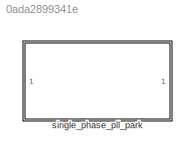
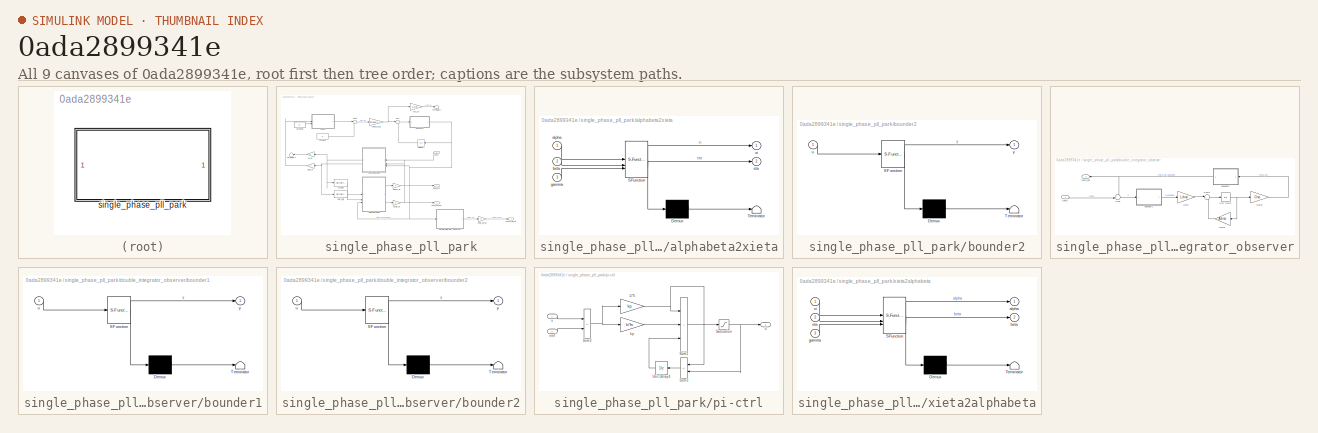
[diagram: thumbnail index - all 9 canvases of the model, root first then tree order]
MODEL slx_0ada2899341e
KIND library
CONFIG AbsTol = auto
CONFIG EnableMultiTasking = off
CONFIG FixedStep = auto
CONFIG MaxStep = auto
CONFIG MinStep = auto
CONFIG RelTol = 1e-3
CONFIG SampleTimeConstraint = Unconstrained
CONFIG SolverName = VariableStepAuto
CONFIG StartTime = 0.0
CONFIG StopTime = 10.0
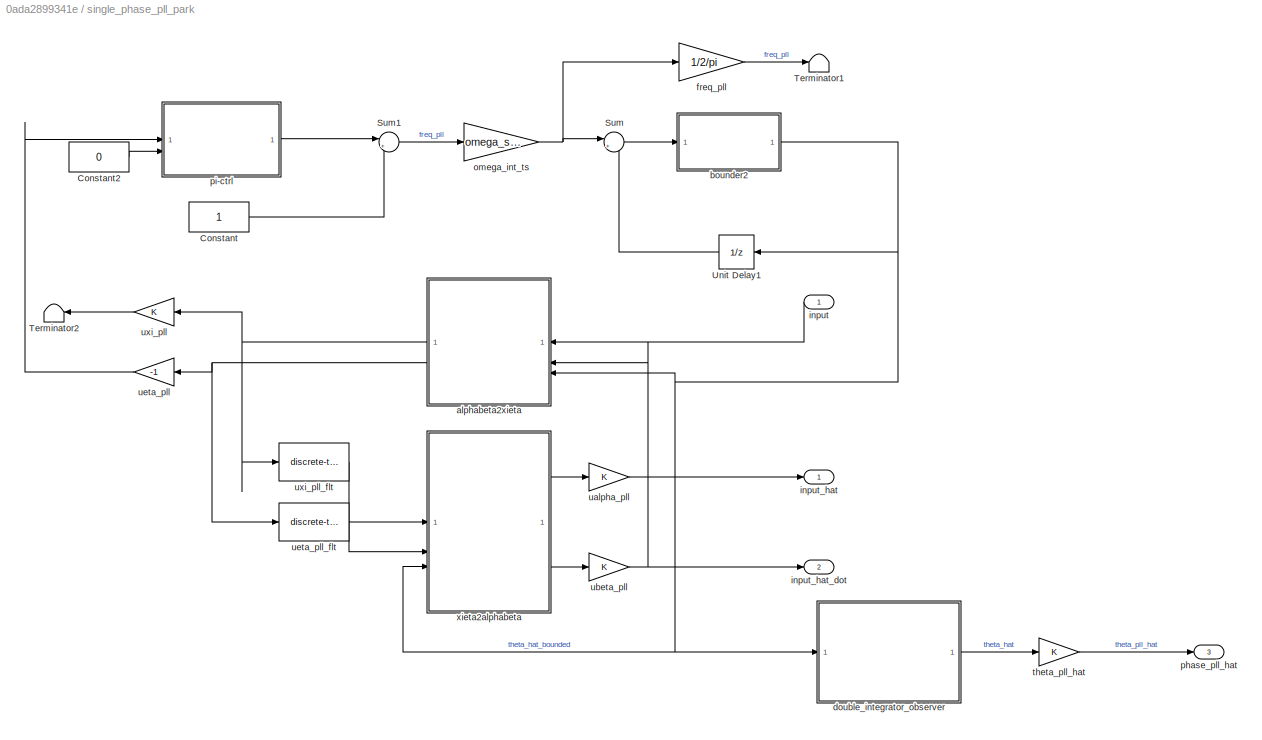
BLOCK [SubSystem] single_phase_pll_park
BLOCK [Constant] single_phase_pll_park/Constant
BLOCK [Constant] single_phase_pll_park/Constant2
  Value = 0
BLOCK [Sum] single_phase_pll_park/Sum
  Inputs = |++
BLOCK [Sum] single_phase_pll_park/Sum1
  Inputs = |++
BLOCK [Terminator] single_phase_pll_park/Terminator1
BLOCK [Terminator] single_phase_pll_park/Terminator2
BLOCK [UnitDelay] single_phase_pll_park/Unit Delay1
  HasFrameUpgradeWarning = on
  SampleTime = -1
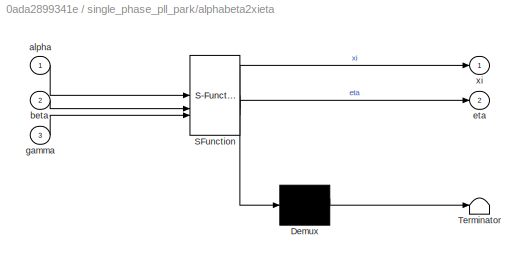
BLOCK [SubSystem] single_phase_pll_park/alphabeta2xieta
  ErrorFcn = Stateflow.Translate.translate
  PermitHierarchicalResolution = ExplicitOnly
  SFBlockType = MATLAB Function
  TreatAsAtomicUnit = on
BLOCK [Demux] single_phase_pll_park/alphabeta2xieta/ Demux 
  Outputs = 1
BLOCK [S-Function] single_phase_pll_park/alphabeta2xieta/ SFunction 
  EnableBusSupport = off
  FunctionName = sf_sfun
  PortCounts = [3 3]
  SFcnIsStateOwnerBlock = off
  SFunctionDeploymentMode = off
  Tag = Stateflow S-Function 2
BLOCK [Terminator] single_phase_pll_park/alphabeta2xieta/ Terminator 
BLOCK [Inport] single_phase_pll_park/alphabeta2xieta/alpha
BLOCK [Inport] single_phase_pll_park/alphabeta2xieta/beta
  Port = 2
BLOCK [Outport] single_phase_pll_park/alphabeta2xieta/eta
  Port = 2
BLOCK [Inport] single_phase_pll_park/alphabeta2xieta/gamma
  Port = 3
BLOCK [Outport] single_phase_pll_park/alphabeta2xieta/xi
BLOCK [SubSystem] single_phase_pll_park/bounder2
  ErrorFcn = Stateflow.Translate.translate
  PermitHierarchicalResolution = ExplicitOnly
  SFBlockType = MATLAB Function
  TreatAsAtomicUnit = on
  TreatAsGroupedWhenPropagatingVariantConditions = off
BLOCK [Demux] single_phase_pll_park/bounder2/ Demux 
  Outputs = 1
BLOCK [S-Function] single_phase_pll_park/bounder2/ SFunction 
  EnableBusSupport = off
  FunctionName = sf_sfun
  PortCounts = [1 2]
  SFcnIsStateOwnerBlock = off
  SFunctionDeploymentMode = off
  Tag = Stateflow S-Function 3
BLOCK [Terminator] single_phase_pll_park/bounder2/ Terminator 
BLOCK [Inport] single_phase_pll_park/bounder2/u
BLOCK [Outport] single_phase_pll_park/bounder2/y
  VectorParamsAs1DForOutWhenUnconnected = off
BLOCK [SubSystem] single_phase_pll_park/double_integrator_observer
BLOCK [Gain] single_phase_pll_park/double_integrator_observer/Gain
  Gain = Ldrso
  Multiplication = Matrix(K*u)
BLOCK [Gain] single_phase_pll_park/double_integrator_observer/Gain1
  Gain = Adrso
  Multiplication = Matrix(K*u)
  NameLocation = top
BLOCK [Gain] single_phase_pll_park/double_integrator_observer/Gain2
  Gain = Crso
  Multiplication = Matrix(K*u)
BLOCK [Sum] single_phase_pll_park/double_integrator_observer/Sum
  Inputs = -+|
BLOCK [Sum] single_phase_pll_park/double_integrator_observer/Sum1
  Inputs = |++
BLOCK [UnitDelay] single_phase_pll_park/double_integrator_observer/Unit Delay
  HasFrameUpgradeWarning = on
  SampleTime = -1
BLOCK [SubSystem] single_phase_pll_park/double_integrator_observer/bounder1
  ErrorFcn = Stateflow.Translate.translate
  PermitHierarchicalResolution = ExplicitOnly
  SFBlockType = MATLAB Function
  TreatAsAtomicUnit = on
  TreatAsGroupedWhenPropagatingVariantConditions = off
BLOCK [Demux] single_phase_pll_park/double_integrator_observer/bounder1/ Demux 
  Outputs = 1
BLOCK [S-Function] single_phase_pll_park/double_integrator_observer/bounder1/ SFunction 
  EnableBusSupport = off
  FunctionName = sf_sfun
  PortCounts = [1 2]
  SFcnIsStateOwnerBlock = off
  SFunctionDeploymentMode = off
  Tag = Stateflow S-Function 12
BLOCK [Terminator] single_phase_pll_park/double_integrator_observer/bounder1/ Terminator 
BLOCK [Inport] single_phase_pll_park/double_integrator_observer/bounder1/u
BLOCK [Outport] single_phase_pll_park/double_integrator_observer/bounder1/y
  VectorParamsAs1DForOutWhenUnconnected = off
BLOCK [SubSystem] single_phase_pll_park/double_integrator_observer/bounder2
  ErrorFcn = Stateflow.Translate.translate
  PermitHierarchicalResolution = ExplicitOnly
  SFBlockType = MATLAB Function
  TreatAsAtomicUnit = on
  TreatAsGroupedWhenPropagatingVariantConditions = off
BLOCK [Demux] single_phase_pll_park/double_integrator_observer/bounder2/ Demux 
  Outputs = 1
BLOCK [S-Function] single_phase_pll_park/double_integrator_observer/bounder2/ SFunction 
  EnableBusSupport = off
  FunctionName = sf_sfun
  PortCounts = [1 2]
  SFcnIsStateOwnerBlock = off
  SFunctionDeploymentMode = off
  Tag = Stateflow S-Function 13
BLOCK [Terminator] single_phase_pll_park/double_integrator_observer/bounder2/ Terminator 
BLOCK [Inport] single_phase_pll_park/double_integrator_observer/bounder2/u
BLOCK [Outport] single_phase_pll_park/double_integrator_observer/bounder2/y
  VectorParamsAs1DForOutWhenUnconnected = off
BLOCK [Inport] single_phase_pll_park/double_integrator_observer/theta
BLOCK [Outport] single_phase_pll_park/double_integrator_observer/theta_hat
BLOCK [Gain] single_phase_pll_park/freq_pll
  Gain = 1/2/pi
BLOCK [Inport] single_phase_pll_park/input
BLOCK [Outport] single_phase_pll_park/input_hat
BLOCK [Outport] single_phase_pll_park/input_hat_dot
  Port = 2
BLOCK [Gain] single_phase_pll_park/omega_int_ts
  Gain = omega_set * ts_inv
BLOCK [Outport] single_phase_pll_park/phase_pll_hat
  Port = 3
BLOCK [SubSystem] single_phase_pll_park/pi-ctrl
BLOCK [Gain] single_phase_pll_park/pi-ctrl/1//Ti
  Gain = kp
  OutDataTypeStr = Inherit: Same as input
  ParamDataTypeStr = Inherit: Same as input
  SaturateOnIntegerOverflow = on
BLOCK [Saturate] single_phase_pll_park/pi-ctrl/Saturation
  LowerLimit = sat_neg
  UpperLimit = sat_pos
BLOCK [Sum] single_phase_pll_park/pi-ctrl/Sum1
  IconShape = rectangular
  Inputs = +++
  SaturateOnIntegerOverflow = on
BLOCK [Sum] single_phase_pll_park/pi-ctrl/Sum2
  IconShape = rectangular
  Inputs = -+
  SaturateOnIntegerOverflow = on
BLOCK [Sum] single_phase_pll_park/pi-ctrl/Sum3
  IconShape = rectangular
  Inputs = -+
  NameLocation = top
  SaturateOnIntegerOverflow = on
BLOCK [UnitDelay] single_phase_pll_park/pi-ctrl/Unit Delay4
  HasFrameUpgradeWarning = on
  SampleTime = -1
BLOCK [Gain] single_phase_pll_park/pi-ctrl/kp
  Gain = ki*ts
  OutDataTypeStr = Inherit: Same as input
  ParamDataTypeStr = Inherit: Same as input
  SaturateOnIntegerOverflow = on
BLOCK [Outport] single_phase_pll_park/pi-ctrl/u
BLOCK [Inport] single_phase_pll_park/pi-ctrl/x
BLOCK [Inport] single_phase_pll_park/pi-ctrl/xref
  Port = 2
BLOCK [Gain] single_phase_pll_park/theta_pll_hat
BLOCK [Gain] single_phase_pll_park/ualpha_pll
BLOCK [Gain] single_phase_pll_park/ubeta_pll
BLOCK [Gain] single_phase_pll_park/ueta_pll
  Gain = -1
BLOCK [Reference] single_phase_pll_park/ueta_pll_flt  REF=discrete_time_low_pass_filter/discrete-time-low-pass-filter  (lib defined in slx_86ef68af02d0)
  SourceBlock = discrete_time_low_pass_filter/discrete-time-low-pass-filter
BLOCK [Gain] single_phase_pll_park/uxi_pll
BLOCK [Reference] single_phase_pll_park/uxi_pll_flt  REF=discrete_time_low_pass_filter/discrete-time-low-pass-filter  (lib defined in slx_86ef68af02d0)
  SourceBlock = discrete_time_low_pass_filter/discrete-time-low-pass-filter
BLOCK [SubSystem] single_phase_pll_park/xieta2alphabeta
  ErrorFcn = Stateflow.Translate.translate
  PermitHierarchicalResolution = ExplicitOnly
  SFBlockType = MATLAB Function
  TreatAsAtomicUnit = on
BLOCK [Demux] single_phase_pll_park/xieta2alphabeta/ Demux 
  Outputs = 1
BLOCK [S-Function] single_phase_pll_park/xieta2alphabeta/ SFunction 
  EnableBusSupport = off
  FunctionName = sf_sfun
  PortCounts = [3 3]
  SFcnIsStateOwnerBlock = off
  SFunctionDeploymentMode = off
  Tag = Stateflow S-Function 16
BLOCK [Terminator] single_phase_pll_park/xieta2alphabeta/ Terminator 
BLOCK [Outport] single_phase_pll_park/xieta2alphabeta/alpha
BLOCK [Outport] single_phase_pll_park/xieta2alphabeta/beta
  Port = 2
BLOCK [Inport] single_phase_pll_park/xieta2alphabeta/eta
  Port = 2
BLOCK [Inport] single_phase_pll_park/xieta2alphabeta/gamma
  Port = 3
BLOCK [Inport] single_phase_pll_park/xieta2alphabeta/xi
LINE single_phase_pll_park/Constant2:1 -> single_phase_pll_park/pi-ctrl:2
LINE single_phase_pll_park/Constant:1 -> single_phase_pll_park/Sum1:2
LINE single_phase_pll_park/Sum1:1 -> single_phase_pll_park/omega_int_ts:1
LINE single_phase_pll_park/Sum:1 -> single_phase_pll_park/bounder2:1
LINE single_phase_pll_park/Unit Delay1:1 -> single_phase_pll_park/Sum:2
NET single_phase_pll_park/alphabeta2xieta:1 -> single_phase_pll_park/uxi_pll:1, single_phase_pll_park/uxi_pll_flt:1
NET single_phase_pll_park/alphabeta2xieta:2 -> single_phase_pll_park/ueta_pll:1, single_phase_pll_park/ueta_pll_flt:1
NET single_phase_pll_park/bounder2:1 -> single_phase_pll_park/Unit Delay1:1, single_phase_pll_park/alphabeta2xieta:3, single_phase_pll_park/double_integrator_observer:1, single_phase_pll_park/xieta2alphabeta:3
LINE single_phase_pll_park/double_integrator_observer/Gain1:1 -> single_phase_pll_park/double_integrator_observer/Sum1:2
LINE single_phase_pll_park/double_integrator_observer/Gain2:1 -> single_phase_pll_park/double_integrator_observer/bounder2:1
LINE single_phase_pll_park/double_integrator_observer/Gain:1 -> single_phase_pll_park/double_integrator_observer/Sum1:1
LINE single_phase_pll_park/double_integrator_observer/Sum1:1 -> single_phase_pll_park/double_integrator_observer/Unit Delay:1
LINE single_phase_pll_park/double_integrator_observer/Sum:1 -> single_phase_pll_park/double_integrator_observer/bounder1:1
NET single_phase_pll_park/double_integrator_observer/Unit Delay:1 -> single_phase_pll_park/double_integrator_observer/Gain1:1, single_phase_pll_park/double_integrator_observer/Gain2:1
LINE single_phase_pll_park/double_integrator_observer/bounder1:1 -> single_phase_pll_park/double_integrator_observer/Gain:1
NET single_phase_pll_park/double_integrator_observer/bounder2:1 -> single_phase_pll_park/double_integrator_observer/Sum:1, single_phase_pll_park/double_integrator_observer/theta_hat:1
LINE single_phase_pll_park/double_integrator_observer/theta:1 -> single_phase_pll_park/double_integrator_observer/Sum:2
LINE single_phase_pll_park/double_integrator_observer:1 -> single_phase_pll_park/theta_pll_hat:1
LINE single_phase_pll_park/freq_pll:1 -> single_phase_pll_park/Terminator1:1
LINE single_phase_pll_park/input:1 -> single_phase_pll_park/alphabeta2xieta:1
NET single_phase_pll_park/omega_int_ts:1 -> single_phase_pll_park/Sum:1, single_phase_pll_park/freq_pll:1
NET single_phase_pll_park/pi-ctrl/1//Ti:1 -> single_phase_pll_park/pi-ctrl/Sum1:1, single_phase_pll_park/pi-ctrl/Sum3:1
NET single_phase_pll_park/pi-ctrl/Saturation:1 -> single_phase_pll_park/pi-ctrl/Sum3:2, single_phase_pll_park/pi-ctrl/u:1
LINE single_phase_pll_park/pi-ctrl/Sum1:1 -> single_phase_pll_park/pi-ctrl/Saturation:1
NET single_phase_pll_park/pi-ctrl/Sum2:1 -> single_phase_pll_park/pi-ctrl/1//Ti:1, single_phase_pll_park/pi-ctrl/kp:1
LINE single_phase_pll_park/pi-ctrl/Sum3:1 -> single_phase_pll_park/pi-ctrl/Unit Delay4:1
LINE single_phase_pll_park/pi-ctrl/Unit Delay4:1 -> single_phase_pll_park/pi-ctrl/Sum1:3
LINE single_phase_pll_park/pi-ctrl/kp:1 -> single_phase_pll_park/pi-ctrl/Sum1:2
LINE single_phase_pll_park/pi-ctrl/x:1 -> single_phase_pll_park/pi-ctrl/Sum2:1
LINE single_phase_pll_park/pi-ctrl/xref:1 -> single_phase_pll_park/pi-ctrl/Sum2:2
LINE single_phase_pll_park/pi-ctrl:1 -> single_phase_pll_park/Sum1:1
LINE single_phase_pll_park/theta_pll_hat:1 -> single_phase_pll_park/phase_pll_hat:1
LINE single_phase_pll_park/ualpha_pll:1 -> single_phase_pll_park/input_hat:1
NET single_phase_pll_park/ubeta_pll:1 -> single_phase_pll_park/alphabeta2xieta:2, single_phase_pll_park/input_hat_dot:1
LINE single_phase_pll_park/ueta_pll:1 -> single_phase_pll_park/pi-ctrl:1
LINE single_phase_pll_park/ueta_pll_flt:1 -> single_phase_pll_park/xieta2alphabeta:2
LINE single_phase_pll_park/uxi_pll:1 -> single_phase_pll_park/Terminator2:1
LINE single_phase_pll_park/uxi_pll_flt:1 -> single_phase_pll_park/xieta2alphabeta:1
LINE single_phase_pll_park/xieta2alphabeta:1 -> single_phase_pll_park/ualpha_pll:1
LINE single_phase_pll_park/xieta2alphabeta:2 -> single_phase_pll_park/ubeta_pll:1
note: NET lines group one-source signal fan-out (src -> all destinations, sorted); 1:1 wires keep LINE
CHART single_phase_pll_park/alphabeta2xieta states=1 transitions=1
  STATE_LABEL 'eML_blk_kernel()'
  STATE_LABEL 'SCRIPT:\nfunction [xi,eta] = alphabeta2xieta(alpha,beta,gamma)\n    xi  =  alpha*cos(gamma) + beta*sin(gamma);\n    eta = -alpha*sin(gamma) + beta*cos(gamma);\nend\n'
CHART single_phase_pll_park/bounder2 states=1 transitions=1
  STATE_LABEL 'eML_blk_kernel()'
  STATE_LABEL 'SCRIPT:\nfunction y = bounder(u)\n    \n    y = -pi + mod(u+3*pi,2*pi);\n   \nend\n\n'
CHART single_phase_pll_park/double_integrator_observer/bounder1 states=1 transitions=1
  STATE_LABEL 'eML_blk_kernel()'
  STATE_LABEL 'SCRIPT:\nfunction y = bounder(u)\n    \n    y = -pi + mod(u+3*pi,2*pi);\n   \nend\n\n'
CHART single_phase_pll_park/double_integrator_observer/bounder2 states=1 transitions=1
  STATE_LABEL 'eML_blk_kernel()'
  STATE_LABEL 'SCRIPT:\nfunction y = bounder(u)\n    \n    y = -pi + mod(u+3*pi,2*pi);\n   \nend\n\n'
CHART single_phase_pll_park/xieta2alphabeta states=1 transitions=1
  STATE_LABEL 'eML_blk_kernel()'
  STATE_LABEL 'SCRIPT:\nfunction [alpha,beta] = xieta2alphabeta(xi,eta,gamma)\n    alpha  = xi*cos(gamma) - eta*sin(gamma);\n    beta = xi*sin(gamma) + eta*cos(gamma);\nend\n'
CHART  states=0 transitions=0
CHART  states=0 transitions=0
CHART  states=0 transitions=0
CHART  states=0 transitions=0
CHART  states=0 transitions=0
